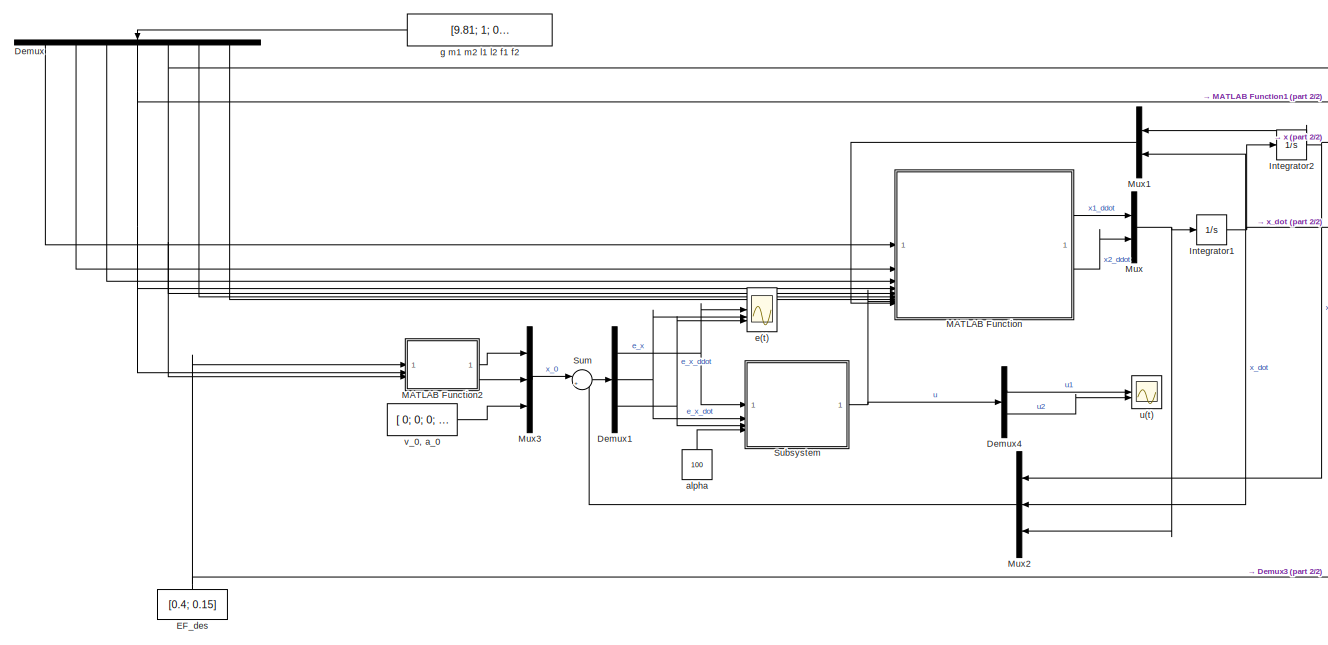
[diagram: root canvas - part 1/2, most of the canvas]
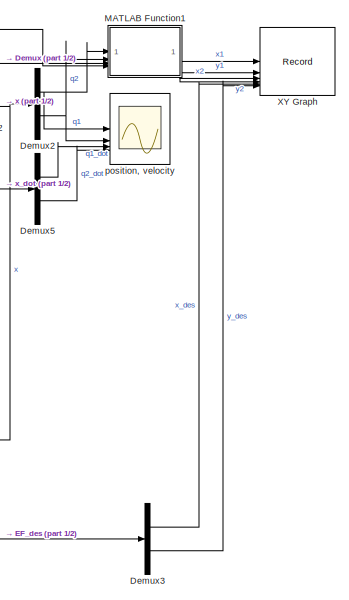
[diagram: root canvas - part 2/2, right side, full height]
MODEL slx_8aea3e20d1c4
KIND model
CONFIG AbsTol = auto
CONFIG EnableMultiTasking = off
CONFIG FixedStep = 1e-3
CONFIG MaxStep = auto
CONFIG MinStep = auto
CONFIG RelTol = 1e-3
CONFIG SampleTimeConstraint = Unconstrained
CONFIG SolverName = FixedStepAuto
CONFIG StartTime = 0.0
CONFIG StopTime = 10
BLOCK [Constant]  g m1 m2 l1 l2 f1 f2
  NameLocation = top
  SampleTime = -1
  Value = [9.81; 1; 0.7; 0.3; 0.2; 1; 1]
BLOCK [Demux] Demux
  NameLocation = left
  Outputs = 7
BLOCK [Demux] Demux1
  Outputs = 3
BLOCK [Demux] Demux2
  Outputs = 2
BLOCK [Demux] Demux3
  Outputs = 2
BLOCK [Demux] Demux4
  Outputs = 2
BLOCK [Demux] Demux5
  Outputs = 2
BLOCK [Constant] EF_des
  NameLocation = right
  SampleTime = -1
  Value = [0.4; 0.15]
BLOCK [Integrator] Integrator1
  LimitOutput = on
  LowerSaturationLimit = [-1,-1]*pi/180*20
  UpperSaturationLimit = [1;1]*pi/180*20
BLOCK [Integrator] Integrator2
  LimitOutput = on
  LowerSaturationLimit = [-pi; -5/6*pi]
  UpperSaturationLimit = [pi; 5/6*pi]
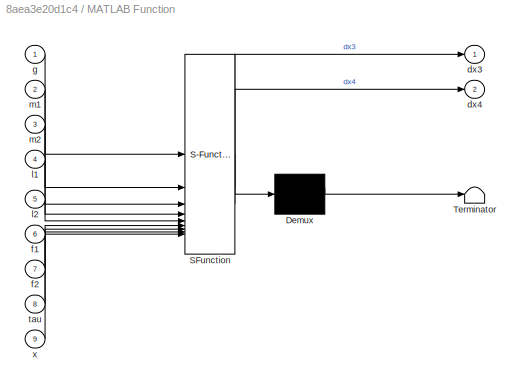
BLOCK [SubSystem] MATLAB Function
  ErrorFcn = Stateflow.Translate.translate
  LibrarySourceBlock = simulink/User-Defined\nFunctions/MATLAB Function
  PermitHierarchicalResolution = ExplicitOnly
  SFBlockType = MATLAB Function
  TreatAsAtomicUnit = on
BLOCK [Demux] MATLAB Function/ Demux 
  Outputs = 1
BLOCK [S-Function] MATLAB Function/ SFunction 
  EnableBusSupport = on
  FunctionName = sf_sfun
  PortCounts = [9 3]
  SFcnIsStateOwnerBlock = off
  SFunctionDeploymentMode = off
  Tag = Stateflow S-Function 2
BLOCK [Terminator] MATLAB Function/ Terminator 
BLOCK [Outport] MATLAB Function/dx3
BLOCK [Outport] MATLAB Function/dx4
  Port = 2
BLOCK [Inport] MATLAB Function/f1
  Port = 6
BLOCK [Inport] MATLAB Function/f2
  Port = 7
BLOCK [Inport] MATLAB Function/g
BLOCK [Inport] MATLAB Function/l1
  Port = 4
BLOCK [Inport] MATLAB Function/l2
  Port = 5
BLOCK [Inport] MATLAB Function/m1
  Port = 2
BLOCK [Inport] MATLAB Function/m2
  Port = 3
BLOCK [Inport] MATLAB Function/tau
  Port = 8
BLOCK [Inport] MATLAB Function/x
  Port = 9
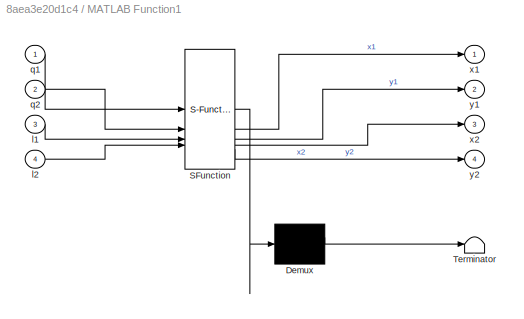
BLOCK [SubSystem] MATLAB Function1
  ErrorFcn = Stateflow.Translate.translate
  LibrarySourceBlock = simulink/User-Defined\nFunctions/MATLAB Function
  PermitHierarchicalResolution = ExplicitOnly
  SFBlockType = MATLAB Function
  TreatAsAtomicUnit = on
BLOCK [Demux] MATLAB Function1/ Demux 
  Outputs = 1
BLOCK [S-Function] MATLAB Function1/ SFunction 
  EnableBusSupport = on
  FunctionName = sf_sfun
  PortCounts = [4 5]
  SFcnIsStateOwnerBlock = off
  SFunctionDeploymentMode = off
  Tag = Stateflow S-Function 1
BLOCK [Terminator] MATLAB Function1/ Terminator 
BLOCK [Inport] MATLAB Function1/l1
  Port = 3
BLOCK [Inport] MATLAB Function1/l2
  Port = 4
BLOCK [Inport] MATLAB Function1/q1
BLOCK [Inport] MATLAB Function1/q2
  Port = 2
BLOCK [Outport] MATLAB Function1/x1
BLOCK [Outport] MATLAB Function1/x2
  Port = 3
BLOCK [Outport] MATLAB Function1/y1
  Port = 2
BLOCK [Outport] MATLAB Function1/y2
  Port = 4
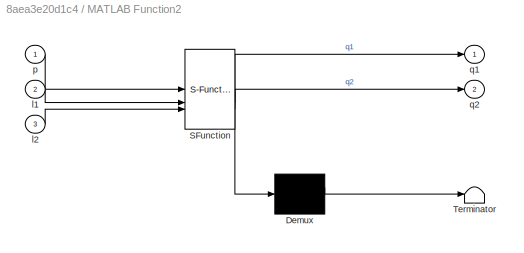
BLOCK [SubSystem] MATLAB Function2
  ErrorFcn = Stateflow.Translate.translate
  LibrarySourceBlock = simulink/User-Defined\nFunctions/MATLAB Function
  PermitHierarchicalResolution = ExplicitOnly
  SFBlockType = MATLAB Function
  TreatAsAtomicUnit = on
BLOCK [Demux] MATLAB Function2/ Demux 
  Outputs = 1
BLOCK [S-Function] MATLAB Function2/ SFunction 
  EnableBusSupport = on
  FunctionName = sf_sfun
  PortCounts = [3 3]
  SFcnIsStateOwnerBlock = off
  SFunctionDeploymentMode = off
  Tag = Stateflow S-Function 3
BLOCK [Terminator] MATLAB Function2/ Terminator 
BLOCK [Inport] MATLAB Function2/l1
  Port = 2
BLOCK [Inport] MATLAB Function2/l2
  Port = 3
BLOCK [Inport] MATLAB Function2/p
BLOCK [Outport] MATLAB Function2/q1
BLOCK [Outport] MATLAB Function2/q2
  Port = 2
BLOCK [Mux] Mux
  DisplayOption = bar
  Inputs = 2
BLOCK [Mux] Mux1
  DisplayOption = bar
  Inputs = 2
  NameLocation = top
BLOCK [Mux] Mux2
  DisplayOption = bar
  Inputs = 3
  NameLocation = top
BLOCK [Mux] Mux3
  DisplayOption = bar
  Inputs = 3
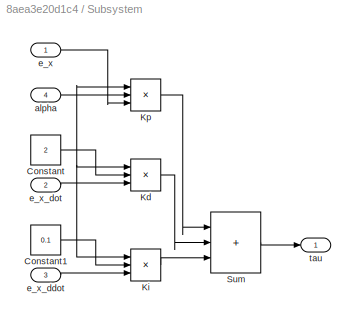
BLOCK [SubSystem] Subsystem
BLOCK [Constant] Subsystem/Constant
  Value = 2
BLOCK [Constant] Subsystem/Constant1
  Value = 0.1
BLOCK [Product] Subsystem/Kd
  Inputs = 3
BLOCK [Product] Subsystem/Ki
  Inputs = 3
BLOCK [Product] Subsystem/Kp
  Inputs = 3
BLOCK [Sum] Subsystem/Sum
  IconShape = rectangular
  Inputs = |+++
BLOCK [Inport] Subsystem/alpha
  Port = 4
BLOCK [Inport] Subsystem/e_x
BLOCK [Inport] Subsystem/e_x_ddot
  Port = 3
BLOCK [Inport] Subsystem/e_x_dot
  Port = 2
BLOCK [Outport] Subsystem/tau
BLOCK [Sum] Sum
  Inputs = |+-
BLOCK [Record] XY Graph
  CompatibilityTag = XY
  FileSettingsInternal = {"entries":[{"content":{"excelSettings":{"content":{},"type":"Streamout.ExcelSettings"}},"type":"Streamout.FileSettingStorage","uuid":""}],"packageUris":["http:\/\/schema.mathworks.com\/mf0\/streamout_blocks\/R2020a"],"version":"1.0"}
  Layout = [1 1]
  SignalsInternal = {"entries":[{"content":{"signals":[{"content":{"blockPath":[],"dimensions":[1],"domain":"","lineColor":"#a2142f","plots":[1],"port":1,"sid":[""],"signalID":10315,"signalName":"x1"},"type":"RecordBlkView.Signal","uuid":""},{"content":{"blockPath":[],"dimensions":[1],"domain":"","lineColor":"#139fff","plots":[1],"port":2,"sid":[""],"signalID":10319,"signalName":"y1"},"type":"RecordBlkView.Signal","u...<+908ch>
  VisualizationBindings = {"xyplotplugin":{"info":[{"series":[{"bindingParametersList":[{"parameter":"X-Axis","signalID":10331,"signalName":"x_des"},{"parameter":"Y-Axis","signalID":10335,"signalName":"y_des"}],"seriesID":11819},{"bindingParametersList":[{"parameter":"X-Axis","signalID":10323,"signalName":"x2"},{"parameter":"Y-Axis","signalID":10327,"signalName":"y2"}],"seriesID":2499},{"bindingParametersList":[{"parameter...<+142ch>
BLOCK [Constant] alpha
  NameLocation = right
  Value = 100
BLOCK [Scope] e(t)
  Floating = off
  NumInputPorts = 3
  ScopeSpecificationString = Simulink.scopes.TimeScopeBlockCfg('CurrentConfiguration', extmgr.ConfigurationSet(extmgr.Configuration('Core','General UI',true),extmgr.Configuration('Core','Source UI',true),extmgr.Configuration('Sources','WiredSimulink',true),extmgr.Configuration('Visuals','Time Domain',true,'SerializedDisplays',{struct('MinYLimReal','-0.22497','MaxYLimReal','1.2672','YLabelReal','','MinYLimMag','0.00000','MaxYL...<+2791ch>
BLOCK [Scope] position, velocity
  Floating = off
  NumInputPorts = 4
  ScopeSpecificationString = Simulink.scopes.TimeScopeBlockCfg('CurrentConfiguration', extmgr.ConfigurationSet(extmgr.Configuration('Core','General UI',true),extmgr.Configuration('Core','Source UI',true),extmgr.Configuration('Sources','WiredSimulink',true,'DataLoggingVariableName','ScopeData2'),extmgr.Configuration('Visuals','Time Domain',true,'SerializedDisplays',{struct('MinYLimReal','-0.09929','MaxYLimReal','0.01103','YLab...<+3414ch>
BLOCK [Scope] u(t)
  Floating = off
  NumInputPorts = 2
  ScopeSpecificationString = Simulink.scopes.TimeScopeBlockCfg('CurrentConfiguration', extmgr.ConfigurationSet(extmgr.Configuration('Core','General UI',true),extmgr.Configuration('Core','Source UI',true),extmgr.Configuration('Sources','WiredSimulink',true,'DataLoggingVariableName','ScopeData1'),extmgr.Configuration('Visuals','Time Domain',true,'SerializedDisplays',{struct('MinYLimReal','-15.08802','MaxYLimReal','75.63461','YL...<+2109ch>
BLOCK [Constant] v_0, a_0
  SampleTime = -1
  Value = [ 0; 0; 0; 0 ]
LINE  g m1 m2 l1 l2 f1 f2:1 -> Demux:1
NET Demux1:1 -> Subsystem:1, e(t):1
NET Demux1:2 -> Subsystem:2, e(t):2
NET Demux1:3 -> Subsystem:3, e(t):3
NET Demux2:1 -> MATLAB Function1:1, position, velocity:1
NET Demux2:2 -> MATLAB Function1:2, position, velocity:2
LINE Demux3:1 -> XY Graph:5
LINE Demux3:2 -> XY Graph:6
LINE Demux4:1 -> u(t):1
LINE Demux4:2 -> u(t):2
LINE Demux5:1 -> position, velocity:3
LINE Demux5:2 -> position, velocity:4
LINE Demux:1 -> MATLAB Function:1
LINE Demux:2 -> MATLAB Function:2
LINE Demux:3 -> MATLAB Function:3
NET Demux:4 -> MATLAB Function1:3, MATLAB Function2:2, MATLAB Function:4
NET Demux:5 -> MATLAB Function1:4, MATLAB Function2:3, MATLAB Function:5
LINE Demux:6 -> MATLAB Function:6
LINE Demux:7 -> MATLAB Function:7
NET EF_des:1 -> Demux3:1, MATLAB Function2:1
NET Integrator1:1 -> Demux5:1, Integrator2:1, Mux1:2, Mux2:2
NET Integrator2:1 -> Demux2:1, Mux1:1, Mux2:1
LINE MATLAB Function1:1 -> XY Graph:1
LINE MATLAB Function1:2 -> XY Graph:2
LINE MATLAB Function1:3 -> XY Graph:3
LINE MATLAB Function1:4 -> XY Graph:4
LINE MATLAB Function2:1 -> Mux3:1
LINE MATLAB Function2:2 -> Mux3:2
LINE MATLAB Function:1 -> Mux:1
LINE MATLAB Function:2 -> Mux:2
LINE Mux1:1 -> MATLAB Function:9
LINE Mux2:1 -> Sum:2
LINE Mux3:1 -> Sum:1
NET Mux:1 -> Integrator1:1, Mux2:3
LINE Subsystem/Constant1:1 -> Subsystem/Ki:2
LINE Subsystem/Constant:1 -> Subsystem/Kd:2
LINE Subsystem/Kd:1 -> Subsystem/Sum:2
LINE Subsystem/Ki:1 -> Subsystem/Sum:3
LINE Subsystem/Kp:1 -> Subsystem/Sum:1
LINE Subsystem/Sum:1 -> Subsystem/tau:1
NET Subsystem/alpha:1 -> Subsystem/Kd:1, Subsystem/Ki:1, Subsystem/Kp:1, Subsystem/Kp:2
LINE Subsystem/e_x:1 -> Subsystem/Kp:3
LINE Subsystem/e_x_ddot:1 -> Subsystem/Ki:3
LINE Subsystem/e_x_dot:1 -> Subsystem/Kd:3
NET Subsystem:1 -> Demux4:1, MATLAB Function:8
LINE Sum:1 -> Demux1:1
LINE alpha:1 -> Subsystem:4
LINE v_0, a_0:1 -> Mux3:3
note: NET lines group one-source signal fan-out (src -> all destinations, sorted); 1:1 wires keep LINE
CHART MATLAB Function1 states=1 transitions=1
  STATE_LABEL 'eML_blk_kernel()'
  STATE_LABEL 'SCRIPT:\nfunction [x1,y1,x2,y2] = fwd(q1, q2, l1, l2)\n\nx1 = l1*cos(q1);\ny1 = l1*sin(q1);\nx2 = x1 + l2*cos(q1+q2);\ny2 = y1 + l2*sin(q1+q2);\n'
CHART MATLAB Function states=1 transitions=1
  STATE_LABEL 'eML_blk_kernel()'
  STATE_LABEL 'SCRIPT:\nfunction [dx3, dx4]  = dxdt(g, m1, m2,l1, l2, f1, f2,tau, x)\n    t1 = tau(1);\n    t2 = tau(2);\n    x1 = x(1);\n    x2 = x(2);\n    x3 = x(3);\n    x4 = x(4);\n    % NO FRICTION\n    % dx3 = (2*l2*t1 - 2*l2*t2 - 2*l1*t2*cos(x2) - g*l1*l2*m2*cos(x1 + 2*x2) + l1^2*l2*m2*x3^2*sin(2*x2) + 2*l1*l2^2*m2*x3^2*sin(x2) + 2*l1*l2^2*m2*x4^2*sin(x2) + 2*g*l1*l2*m1*cos(x1) + g*l1*l2*m2*cos(x1) + 4*l1*l2^2*m2...<+1758ch>'
CHART MATLAB Function2 states=1 transitions=1
  STATE_LABEL 'eML_blk_kernel()'
  STATE_LABEL 'SCRIPT:\nfunction [q1, q2] = IK(p, l1, l2)\nXE = p(1);\nYE = p(2);\nc2 = (XE^2+YE^2-l1^2-l2^2)/(2*l1*l2);\ns2 = sqrt(1-c2^2);\nq2 = atan2(s2,c2);\nR2 = [c2, -s2; s2, c2];\nRHS = R2*[l2;0]+[l1;0];\na = RHS(1);\nb = RHS(2);\nLHS = 1/(a^2+b^2)*[a b; -b a]*[XE; YE];\nc1 = LHS(1);\ns1 = LHS(2);\nq1 = atan2(s1,c1);'
CHART  states=0 transitions=0
CHART  states=0 transitions=0
CHART  states=0 transitions=0
